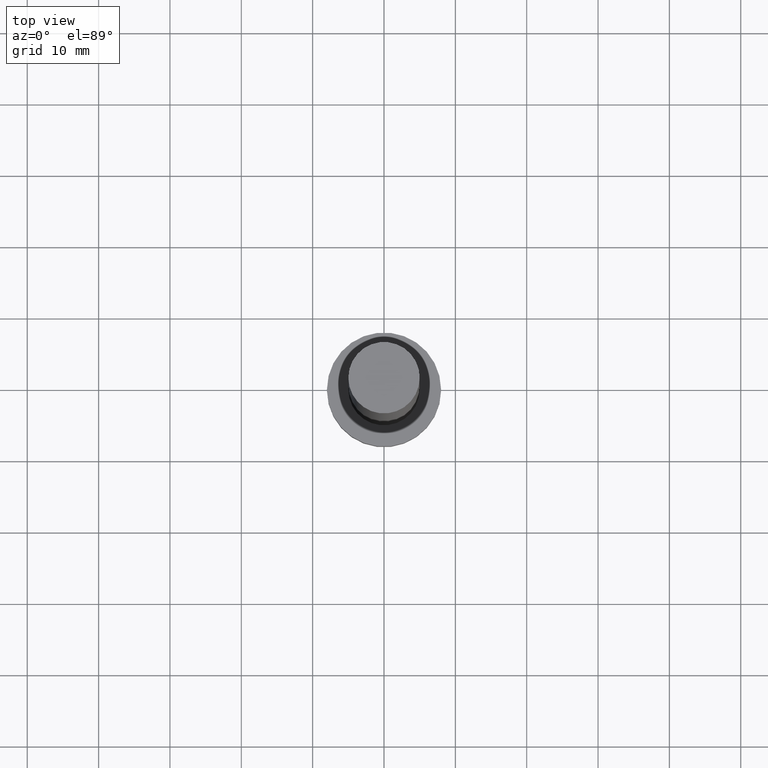
[diagram: clean part render]
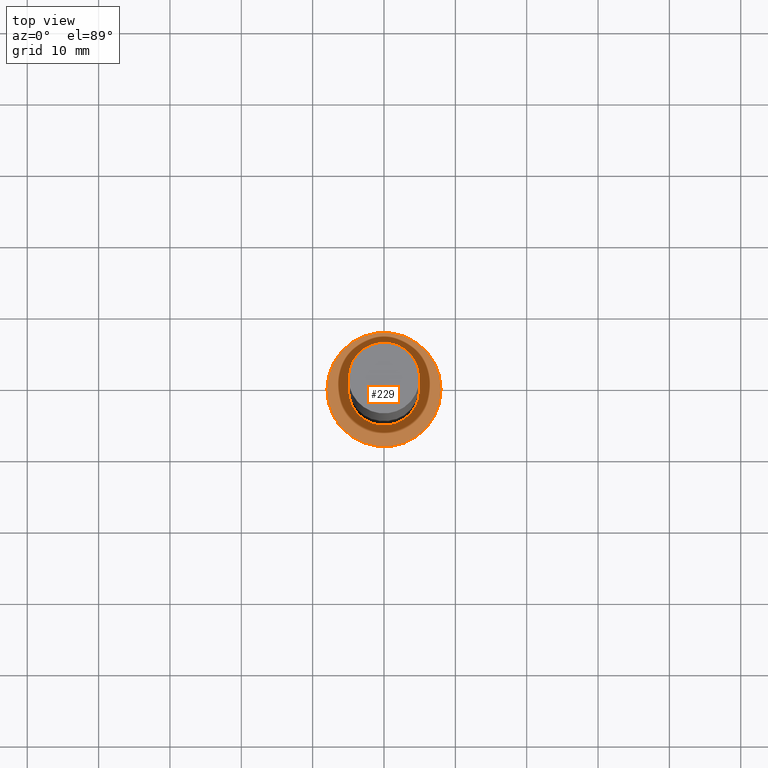
[diagram: same view with one face highlighted and labeled with its STEP entity id]
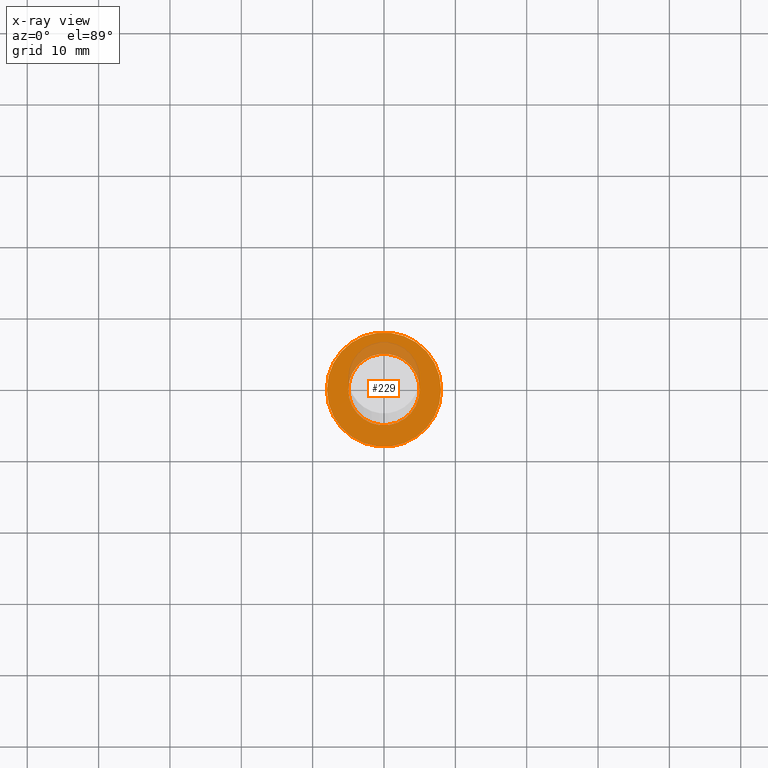
[diagram: x-ray of the same camera — body ghosted, the highlighted face saturated]
A machine part, top view. The second image highlights one B-rep face of the part: STEP entity #229.
The next image is the same camera in x-ray: the body ghosted, the highlighted face saturated — about 14% of this face is hidden behind the body in this view.
In plain terms, the highlighted planar face has unit normal (0, 0, 1).
Its self-contained STEP definition (entity closure, byte-faithful):
#17 = AXIS2_PLACEMENT_3D ( 'NONE', #19, #130, #56 ) ;
#18 = EDGE_CURVE ( 'NONE', #102, #76, #247, .T. ) ;
#19 = CARTESIAN_POINT ( 'NONE',  ( 0.000000000000000000, 0.000000000000000000, 5.000000000000000000 ) ) ;
#31 = AXIS2_PLACEMENT_3D ( 'NONE', #141, #80, #60 ) ;
#32 = DIRECTION ( 'NONE',  ( 1.000000000000000000, 0.000000000000000000, 0.000000000000000000 ) ) ;
#34 = CIRCLE ( 'NONE', #78, 8.000000000000000000 ) ;
#35 = PLANE ( 'NONE',  #121 ) ;
#37 = ORIENTED_EDGE ( 'NONE', *, *, #225, .F. ) ;
#38 = EDGE_LOOP ( 'NONE', ( #162, #171 ) ) ;
#42 = VERTEX_POINT ( 'NONE', #137 ) ;
#45 = DIRECTION ( 'NONE',  ( 1.000000000000000000, 0.000000000000000000, 0.000000000000000000 ) ) ;
#56 = DIRECTION ( 'NONE',  ( 1.000000000000000000, 0.000000000000000000, 0.000000000000000000 ) ) ;
#59 = CARTESIAN_POINT ( 'NONE',  ( 0.000000000000000000, 0.000000000000000000, 5.000000000000000000 ) ) ;
#60 = DIRECTION ( 'NONE',  ( 1.000000000000000000, 0.000000000000000000, 0.000000000000000000 ) ) ;
#66 = CARTESIAN_POINT ( 'NONE',  ( 0.000000000000000000, 0.000000000000000000, 5.000000000000000000 ) ) ;
#71 = CARTESIAN_POINT ( 'NONE',  ( -8.000000000000000000, 0.000000000000000000, 5.000000000000000000 ) ) ;
#76 = VERTEX_POINT ( 'NONE', #205 ) ;
#78 = AXIS2_PLACEMENT_3D ( 'NONE', #59, #246, #32 ) ;
#80 = DIRECTION ( 'NONE',  ( 0.000000000000000000, 0.000000000000000000, 1.000000000000000000 ) ) ;
#92 = CARTESIAN_POINT ( 'NONE',  ( 5.000000000000000000, 6.123233995736766282E-16, 5.000000000000000000 ) ) ;
#102 = VERTEX_POINT ( 'NONE', #71 ) ;
#112 = CARTESIAN_POINT ( 'NONE',  ( 0.000000000000000000, 0.000000000000000000, 5.000000000000000000 ) ) ;
#115 = CIRCLE ( 'NONE', #17, 5.000000000000000000 ) ;
#116 = DIRECTION ( 'NONE',  ( 1.000000000000000000, 0.000000000000000000, -0.000000000000000000 ) ) ;
#121 = AXIS2_PLACEMENT_3D ( 'NONE', #112, #152, #116 ) ;
#130 = DIRECTION ( 'NONE',  ( 0.000000000000000000, 0.000000000000000000, 1.000000000000000000 ) ) ;
#135 = CIRCLE ( 'NONE', #139, 5.000000000000000000 ) ;
#136 = FACE_BOUND ( 'NONE', #235, .T. ) ;
#137 = CARTESIAN_POINT ( 'NONE',  ( -5.000000000000000000, 0.000000000000000000, 5.000000000000000000 ) ) ;
#139 = AXIS2_PLACEMENT_3D ( 'NONE', #66, #144, #45 ) ;
#141 = CARTESIAN_POINT ( 'NONE',  ( 0.000000000000000000, 0.000000000000000000, 5.000000000000000000 ) ) ;
#144 = DIRECTION ( 'NONE',  ( 0.000000000000000000, 0.000000000000000000, 1.000000000000000000 ) ) ;
#152 = DIRECTION ( 'NONE',  ( 0.000000000000000000, 0.000000000000000000, 1.000000000000000000 ) ) ;
#154 = FACE_OUTER_BOUND ( 'NONE', #38, .T. ) ;
#162 = ORIENTED_EDGE ( 'NONE', *, *, #18, .T. ) ;
#171 = ORIENTED_EDGE ( 'NONE', *, *, #203, .T. ) ;
#194 = EDGE_CURVE ( 'NONE', #196, #42, #135, .T. ) ;
#196 = VERTEX_POINT ( 'NONE', #92 ) ;
#203 = EDGE_CURVE ( 'NONE', #76, #102, #34, .T. ) ;
#205 = CARTESIAN_POINT ( 'NONE',  ( 8.000000000000000000, 9.797174393178825657E-16, 5.000000000000000000 ) ) ;
#210 = ORIENTED_EDGE ( 'NONE', *, *, #194, .F. ) ;
#225 = EDGE_CURVE ( 'NONE', #42, #196, #115, .T. ) ;
#229 = ADVANCED_FACE ( 'NONE', ( #136, #154 ), #35, .T. ) ;
#235 = EDGE_LOOP ( 'NONE', ( #37, #210 ) ) ;
#246 = DIRECTION ( 'NONE',  ( 0.000000000000000000, 0.000000000000000000, 1.000000000000000000 ) ) ;
#247 = CIRCLE ( 'NONE', #31, 8.000000000000000000 ) ;